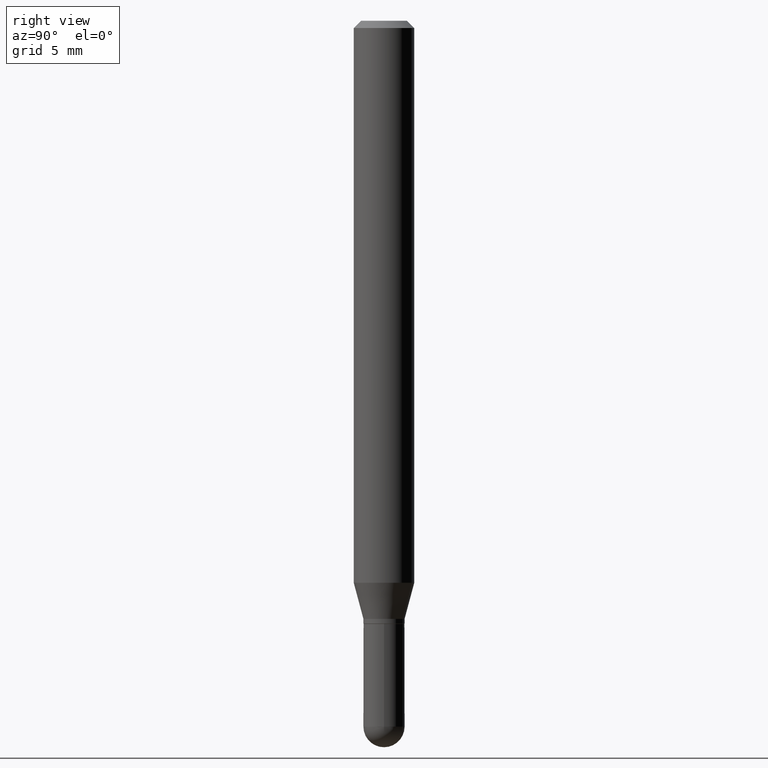
[diagram: clean part render]
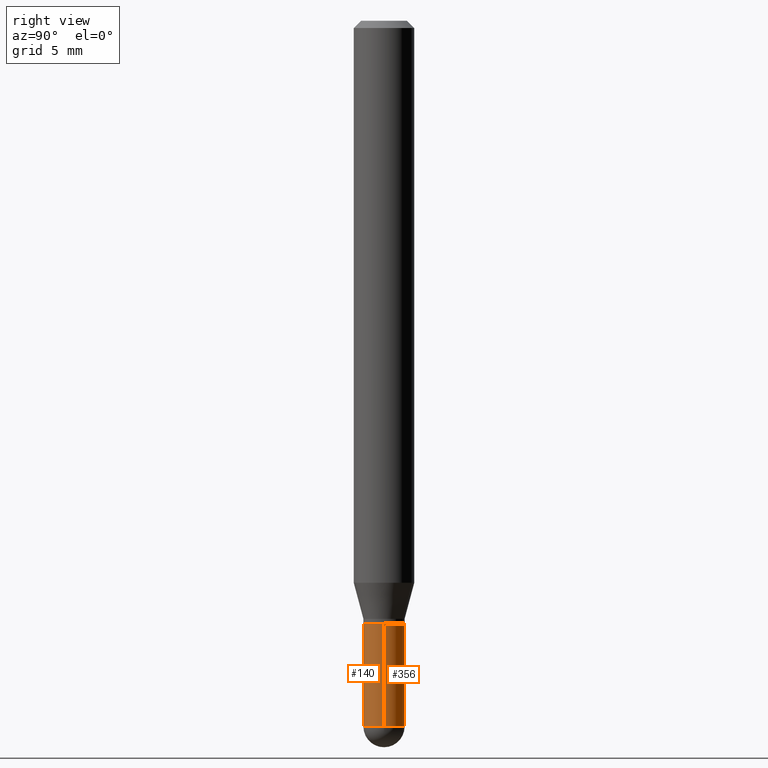
[diagram: same view with one multi-face feature highlighted, each face labeled with its STEP entity id]
A machine part, right view. The highlighted faces form ONE feature: a constant-radius fillet chain: 2 tangent blend faces with common blend radius 1.0795 mm. The faces share edges in the B-rep.
Their STEP definitions:
[1] entity #140 (Cylinder):
#4 = CARTESIAN_POINT ( 'NONE',  ( 3.044608663700495534E-29, -4.346894266859716647E-15, -1.245000000000000329 ) ) ;
#27 = ORIENTED_EDGE ( 'NONE', *, *, #427, .T. ) ;
#36 = ORIENTED_EDGE ( 'NONE', *, *, #62, .F. ) ;
#37 = AXIS2_PLACEMENT_3D ( 'NONE', #4, #167, #365 ) ;
#46 = CARTESIAN_POINT ( 'NONE',  ( 0.04250000000000000999, -5.014640072913468189E-15, -1.457500000000000240 ) ) ;
#47 = CARTESIAN_POINT ( 'NONE',  ( -0.04250000000000000999, 3.019806626980426500E-16, -2.090547413358335560E-30 ) ) ;
#57 = DIRECTION ( 'NONE',  ( 1.000000000000000000, -6.982962677686273810E-15, 0.000000000000000000 ) ) ;
#60 = CARTESIAN_POINT ( 'NONE',  ( 3.564270785014837509E-29, -5.088834051363884851E-15, -1.457500000000000240 ) ) ;
#62 = EDGE_CURVE ( 'NONE', #415, #418, #262, .T. ) ;
#89 = CYLINDRICAL_SURFACE ( 'NONE', #147, 0.04250000000000000999 ) ;
#92 = FACE_OUTER_BOUND ( 'NONE', #412, .T. ) ;
#95 = LINE ( 'NONE', #47, #363 ) ;
#103 = EDGE_CURVE ( 'NONE', #485, #415, #95, .T. ) ;
#124 = CIRCLE ( 'NONE', #448, 0.04250000000000000999 ) ;
#140 = ADVANCED_FACE ( 'NONE', ( #92 ), #89, .T. ) ;
#145 = DIRECTION ( 'NONE',  ( -2.445468806185136597E-29, 3.491481338843145583E-15, 1.000000000000000000 ) ) ;
#147 = AXIS2_PLACEMENT_3D ( 'NONE', #437, #247, #401 ) ;
#166 = CARTESIAN_POINT ( 'NONE',  ( 0.04250000000000000999, -2.967759138016664042E-16, 2.072375129713273202E-30 ) ) ;
#167 = DIRECTION ( 'NONE',  ( -2.445468806185136597E-29, 3.491481338843145583E-15, 1.000000000000000000 ) ) ;
#183 = ORIENTED_EDGE ( 'NONE', *, *, #264, .T. ) ;
#205 = LINE ( 'NONE', #166, #510 ) ;
#235 = EDGE_CURVE ( 'NONE', #485, #258, #391, .T. ) ;
#247 = DIRECTION ( 'NONE',  ( -2.445468806185136597E-29, 3.491481338843145583E-15, 1.000000000000000000 ) ) ;
#250 = DIRECTION ( 'NONE',  ( -2.445468806185136877E-29, 3.491481338843145188E-15, 1.000000000000000000 ) ) ;
#258 = VERTEX_POINT ( 'NONE', #411 ) ;
#262 = CIRCLE ( 'NONE', #37, 0.04249999999999999611 ) ;
#264 = EDGE_CURVE ( 'NONE', #258, #425, #124, .T. ) ;
#304 = DIRECTION ( 'NONE',  ( 1.000000000000000000, -6.982962677686273810E-15, 0.000000000000000000 ) ) ;
#352 = ORIENTED_EDGE ( 'NONE', *, *, #103, .F. ) ;
#363 = VECTOR ( 'NONE', #250, 39.37007874015748143 ) ;
#365 = DIRECTION ( 'NONE',  ( 1.000000000000000000, -6.982962677686265133E-15, 0.000000000000000000 ) ) ;
#366 = CARTESIAN_POINT ( 'NONE',  ( -0.04250000000000000999, -4.415883496413759874E-15, -1.457500000000000240 ) ) ;
#378 = DIRECTION ( 'NONE',  ( -2.445468806185136597E-29, 3.491481338843145583E-15, 1.000000000000000000 ) ) ;
#390 = CARTESIAN_POINT ( 'NONE',  ( -0.04249999999999999611, -4.415883496413758296E-15, -1.245000000000000329 ) ) ;
#391 = CIRCLE ( 'NONE', #482, 0.04250000000000000999 ) ;
#401 = DIRECTION ( 'NONE',  ( 1.000000000000000000, -6.982962677686266711E-15, 4.876176775795935793E-29 ) ) ;
#411 = CARTESIAN_POINT ( 'NONE',  ( -3.019806626980067075E-16, -0.04250000000000507538, -1.457500000000000018 ) ) ;
#412 = EDGE_LOOP ( 'NONE', ( #352, #420, #183, #27, #36 ) ) ;
#415 = VERTEX_POINT ( 'NONE', #390 ) ;
#418 = VERTEX_POINT ( 'NONE', #505 ) ;
#420 = ORIENTED_EDGE ( 'NONE', *, *, #235, .T. ) ;
#425 = VERTEX_POINT ( 'NONE', #46 ) ;
#427 = EDGE_CURVE ( 'NONE', #425, #418, #205, .T. ) ;
#430 = DIRECTION ( 'NONE',  ( -2.445468806185136877E-29, 3.491481338843145188E-15, 1.000000000000000000 ) ) ;
#437 = CARTESIAN_POINT ( 'NONE',  ( 0.000000000000000000, 0.000000000000000000, 0.000000000000000000 ) ) ;
#448 = AXIS2_PLACEMENT_3D ( 'NONE', #490, #145, #57 ) ;
#482 = AXIS2_PLACEMENT_3D ( 'NONE', #60, #378, #304 ) ;
#485 = VERTEX_POINT ( 'NONE', #366 ) ;
#490 = CARTESIAN_POINT ( 'NONE',  ( 3.564270785014837509E-29, -5.088834051363884851E-15, -1.457500000000000240 ) ) ;
#505 = CARTESIAN_POINT ( 'NONE',  ( 0.04249999999999999611, -4.643670180661383298E-15, -1.245000000000000329 ) ) ;
#510 = VECTOR ( 'NONE', #430, 39.37007874015748143 ) ;
[2] entity #356 (Cylinder):
#20 = CARTESIAN_POINT ( 'NONE',  ( 2.967759138017017551E-16, 0.04249999999999488215, -1.457500000000000462 ) ) ;
#22 = EDGE_LOOP ( 'NONE', ( #273, #105, #506, #275, #429 ) ) ;
#46 = CARTESIAN_POINT ( 'NONE',  ( 0.04250000000000000999, -5.014640072913468189E-15, -1.457500000000000240 ) ) ;
#47 = CARTESIAN_POINT ( 'NONE',  ( -0.04250000000000000999, 3.019806626980426500E-16, -2.090547413358335560E-30 ) ) ;
#95 = LINE ( 'NONE', #47, #363 ) ;
#103 = EDGE_CURVE ( 'NONE', #485, #415, #95, .T. ) ;
#105 = ORIENTED_EDGE ( 'NONE', *, *, #103, .T. ) ;
#137 = DIRECTION ( 'NONE',  ( -2.445468806185136597E-29, 3.491481338843145583E-15, 1.000000000000000000 ) ) ;
#156 = EDGE_CURVE ( 'NONE', #504, #485, #310, .T. ) ;
#157 = CYLINDRICAL_SURFACE ( 'NONE', #407, 0.04250000000000000999 ) ;
#159 = DIRECTION ( 'NONE',  ( 1.000000000000000000, -6.982962677686273810E-15, 0.000000000000000000 ) ) ;
#163 = CIRCLE ( 'NONE', #496, 0.04249999999999999611 ) ;
#166 = CARTESIAN_POINT ( 'NONE',  ( 0.04250000000000000999, -2.967759138016664042E-16, 2.072375129713273202E-30 ) ) ;
#196 = FACE_OUTER_BOUND ( 'NONE', #22, .T. ) ;
#203 = AXIS2_PLACEMENT_3D ( 'NONE', #348, #424, #159 ) ;
#205 = LINE ( 'NONE', #166, #510 ) ;
#220 = CIRCLE ( 'NONE', #203, 0.04250000000000000999 ) ;
#226 = EDGE_CURVE ( 'NONE', #418, #415, #163, .T. ) ;
#246 = DIRECTION ( 'NONE',  ( -2.445468806185136597E-29, 3.491481338843145583E-15, 1.000000000000000000 ) ) ;
#250 = DIRECTION ( 'NONE',  ( -2.445468806185136877E-29, 3.491481338843145188E-15, 1.000000000000000000 ) ) ;
#273 = ORIENTED_EDGE ( 'NONE', *, *, #156, .T. ) ;
#275 = ORIENTED_EDGE ( 'NONE', *, *, #427, .F. ) ;
#290 = DIRECTION ( 'NONE',  ( 1.000000000000000000, -6.982962677686265133E-15, 0.000000000000000000 ) ) ;
#310 = CIRCLE ( 'NONE', #502, 0.04250000000000000999 ) ;
#330 = CARTESIAN_POINT ( 'NONE',  ( 3.044608663700495534E-29, -4.346894266859716647E-15, -1.245000000000000329 ) ) ;
#335 = EDGE_CURVE ( 'NONE', #425, #504, #220, .T. ) ;
#348 = CARTESIAN_POINT ( 'NONE',  ( 3.564270785014837509E-29, -5.088834051363884851E-15, -1.457500000000000240 ) ) ;
#356 = ADVANCED_FACE ( 'NONE', ( #196 ), #157, .T. ) ;
#363 = VECTOR ( 'NONE', #250, 39.37007874015748143 ) ;
#366 = CARTESIAN_POINT ( 'NONE',  ( -0.04250000000000000999, -4.415883496413759874E-15, -1.457500000000000240 ) ) ;
#376 = CARTESIAN_POINT ( 'NONE',  ( 3.564270785014837509E-29, -5.088834051363884851E-15, -1.457500000000000240 ) ) ;
#384 = DIRECTION ( 'NONE',  ( 1.000000000000000000, -6.982962677686266711E-15, 4.876176775795935793E-29 ) ) ;
#390 = CARTESIAN_POINT ( 'NONE',  ( -0.04249999999999999611, -4.415883496413758296E-15, -1.245000000000000329 ) ) ;
#407 = AXIS2_PLACEMENT_3D ( 'NONE', #469, #246, #384 ) ;
#415 = VERTEX_POINT ( 'NONE', #390 ) ;
#418 = VERTEX_POINT ( 'NONE', #505 ) ;
#424 = DIRECTION ( 'NONE',  ( -2.445468806185136597E-29, 3.491481338843145583E-15, 1.000000000000000000 ) ) ;
#425 = VERTEX_POINT ( 'NONE', #46 ) ;
#427 = EDGE_CURVE ( 'NONE', #425, #418, #205, .T. ) ;
#429 = ORIENTED_EDGE ( 'NONE', *, *, #335, .T. ) ;
#430 = DIRECTION ( 'NONE',  ( -2.445468806185136877E-29, 3.491481338843145188E-15, 1.000000000000000000 ) ) ;
#456 = DIRECTION ( 'NONE',  ( 1.000000000000000000, -6.982962677686273810E-15, 0.000000000000000000 ) ) ;
#460 = DIRECTION ( 'NONE',  ( -2.445468806185136597E-29, 3.491481338843145583E-15, 1.000000000000000000 ) ) ;
#469 = CARTESIAN_POINT ( 'NONE',  ( 0.000000000000000000, 0.000000000000000000, 0.000000000000000000 ) ) ;
#485 = VERTEX_POINT ( 'NONE', #366 ) ;
#496 = AXIS2_PLACEMENT_3D ( 'NONE', #330, #137, #290 ) ;
#502 = AXIS2_PLACEMENT_3D ( 'NONE', #376, #460, #456 ) ;
#504 = VERTEX_POINT ( 'NONE', #20 ) ;
#505 = CARTESIAN_POINT ( 'NONE',  ( 0.04249999999999999611, -4.643670180661383298E-15, -1.245000000000000329 ) ) ;
#506 = ORIENTED_EDGE ( 'NONE', *, *, #226, .F. ) ;
#510 = VECTOR ( 'NONE', #430, 39.37007874015748143 ) ;